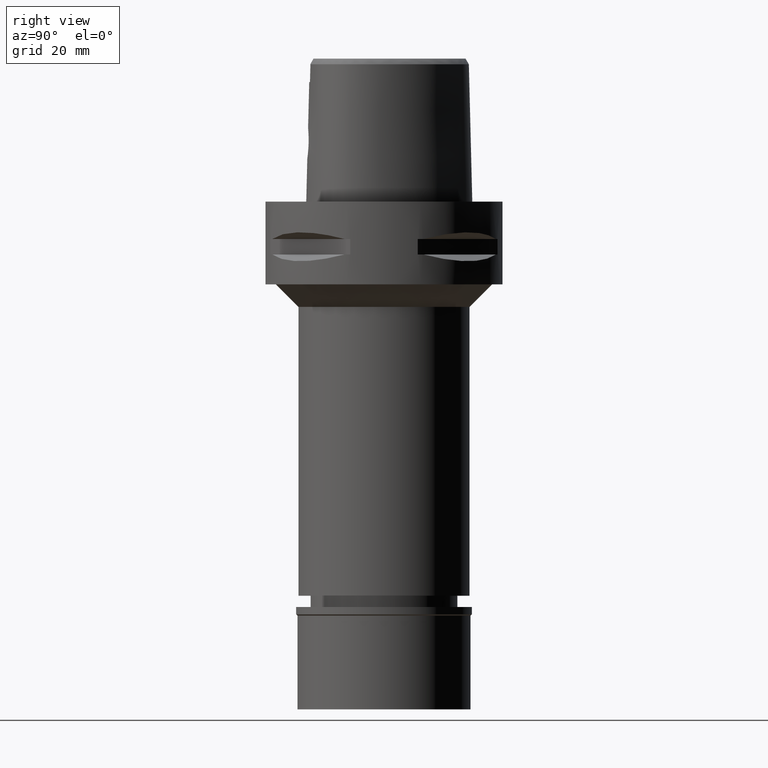
[diagram: clean part render]
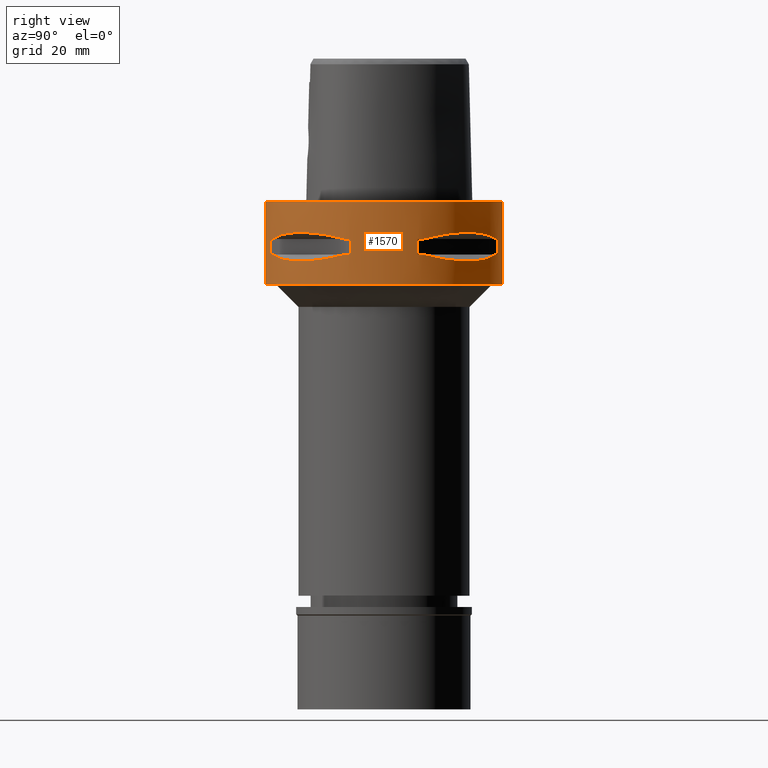
[diagram: same view with one face highlighted and labeled with its STEP entity id]
A machine part, right view. The second image highlights one B-rep face of the part: STEP entity #1570.
In plain terms, the highlighted cylindrical surface (partial cylindrical patch) has radius 31.5 mm, axis along (0, 0, -1).
Its self-contained STEP definition (entity closure, byte-faithful):
#2 = CARTESIAN_POINT ( 'NONE',  ( 0.0000000000000000000, -31.50000000000000000, 0.0000000000000000000 ) ) ;
#21 = CARTESIAN_POINT ( 'NONE',  ( 0.0000000000000000000, 0.0000000000000000000, -9.950000000000001066 ) ) ;
#24 = EDGE_CURVE ( 'NONE', #4113, #4160, #302, .T. ) ;
#32 = CARTESIAN_POINT ( 'NONE',  ( 10.44775724750000023, 29.71690375017999841, -14.05000000000000071 ) ) ;
#38 = CARTESIAN_POINT ( 'NONE',  ( 16.70616724746230730, -26.70521063584596888, -15.37546661818052307 ) ) ;
#58 = CARTESIAN_POINT ( 'NONE',  ( 27.86285265926851551, -14.89252659056515427, -15.10765629751784012 ) ) ;
#65 = VERTEX_POINT ( 'NONE', #779 ) ;
#103 = VECTOR ( 'NONE', #1225, 1000.000000000000000 ) ;
#114 = CARTESIAN_POINT ( 'NONE',  ( 16.48208282229545318, -26.84474411198741350, -15.34094883778379348 ) ) ;
#134 = CARTESIAN_POINT ( 'NONE',  ( 10.44775724750000023, -29.71690375017999841, -14.05000000000000071 ) ) ;
#155 = B_SPLINE_CURVE_WITH_KNOTS ( 'NONE', 3,
 ( #2119, #2429, #2825, #3939, #553, #1668, #2142, #4342, #3963, #532 ),
 .UNSPECIFIED., .F., .F.,
 ( 4, 2, 2, 2, 4 ),
 ( 0.0000000000000000000, 0.2500000000000000000, 0.5000000000000000000, 0.7500000000000000000, 1.000000000000000000 ),
 .UNSPECIFIED. ) ;
#166 = CARTESIAN_POINT ( 'NONE',  ( 0.0000000000000000000, 0.0000000000000000000, -9.950000000000001066 ) ) ;
#173 = EDGE_LOOP ( 'NONE', ( #1981, #1907, #2407, #322, #400, #2802, #3371, #3181 ) ) ;
#181 = CARTESIAN_POINT ( 'NONE',  ( 30.19251670572000279, -8.981198972016999349, -9.950000000000001066 ) ) ;
#196 = CARTESIAN_POINT ( 'NONE',  ( 10.44775724750000023, 29.71690375017999841, -9.950000000002001244 ) ) ;
#205 = DIRECTION ( 'NONE',  ( 0.3316748332540863653, -0.9433937698468619626, 0.0000000000000000000 ) ) ;
#228 = CARTESIAN_POINT ( 'NONE',  ( 8.981198972019999616, -30.19251670572000279, -9.950000000000001066 ) ) ;
#236 = CARTESIAN_POINT ( 'NONE',  ( 18.81462633026355391, 25.37272068403001768, -8.309724968617139496 ) ) ;
#295 = CARTESIAN_POINT ( 'NONE',  ( 0.0000000000000000000, 0.0000000000000000000, -14.05000000000000071 ) ) ;
#302 = CIRCLE ( 'NONE', #1915, 31.50000000000001776 ) ;
#311 = CARTESIAN_POINT ( 'NONE',  ( 0.0000000000000000000, 0.0000000000000000000, 1.243449787579999883E-14 ) ) ;
#322 = ORIENTED_EDGE ( 'NONE', *, *, #2070, .F. ) ;
#341 = CARTESIAN_POINT ( 'NONE',  ( 0.0000000000000000000, 0.0000000000000000000, -22.00000000000000000 ) ) ;
#354 = FACE_BOUND ( 'NONE', #173, .T. ) ;
#381 = LINE ( 'NONE', #2401, #404 ) ;
#396 = ORIENTED_EDGE ( 'NONE', *, *, #4769, .T. ) ;
#397 = CIRCLE ( 'NONE', #1059, 31.50000000000001776 ) ;
#400 = ORIENTED_EDGE ( 'NONE', *, *, #2426, .T. ) ;
#404 = VECTOR ( 'NONE', #3914, 1000.000000000000000 ) ;
#407 = DIRECTION ( 'NONE',  ( 0.9433937698468619626, -0.3316748332540863653, 0.0000000000000000000 ) ) ;
#426 = CARTESIAN_POINT ( 'NONE',  ( 16.80193241490862022, -26.64486562695897121, -15.38992683736031708 ) ) ;
#483 = ORIENTED_EDGE ( 'NONE', *, *, #2037, .T. ) ;
#492 = AXIS2_PLACEMENT_3D ( 'NONE', #4455, #3634, #205 ) ;
#532 = CARTESIAN_POINT ( 'NONE',  ( 29.71690375017999841, -10.44775724750000023, -9.950000000002001244 ) ) ;
#553 = CARTESIAN_POINT ( 'NONE',  ( 20.64154884324731043, -23.90617837150517389, -8.160627831300901747 ) ) ;
#618 = CARTESIAN_POINT ( 'NONE',  ( 26.60451452154907059, 16.86571563436881149, -15.39949295786330197 ) ) ;
#650 = CARTESIAN_POINT ( 'NONE',  ( 17.05047092244371854, 26.48642424310703447, -15.42670883407968674 ) ) ;
#665 = CARTESIAN_POINT ( 'NONE',  ( 29.71690375017999841, 10.44775724750000023, -9.950000000002001244 ) ) ;
#675 = VERTEX_POINT ( 'NONE', #3251 ) ;
#702 = FACE_BOUND ( 'NONE', #4421, .T. ) ;
#716 = AXIS2_PLACEMENT_3D ( 'NONE', #311, #3823, #1170 ) ;
#717 = LINE ( 'NONE', #2251, #3045 ) ;
#769 = DIRECTION ( 'NONE',  ( 0.0000000000000000000, 0.0000000000000000000, -1.000000000000000000 ) ) ;
#779 = CARTESIAN_POINT ( 'NONE',  ( 29.71690375017999841, -10.44775724750000023, -9.950000000002001244 ) ) ;
#838 = LINE ( 'NONE', #4595, #103 ) ;
#866 = CARTESIAN_POINT ( 'NONE',  ( 15.11986997311391612, -27.64634172017876068, -15.11207862404153524 ) ) ;
#884 = EDGE_CURVE ( 'NONE', #1519, #1161, #1674, .T. ) ;
#947 = ORIENTED_EDGE ( 'NONE', *, *, #3943, .T. ) ;
#1002 = DIRECTION ( 'NONE',  ( 0.9433937698468619626, 0.3316748332540863653, 0.0000000000000000000 ) ) ;
#1034 = CARTESIAN_POINT ( 'NONE',  ( 0.0000000000000000000, 0.0000000000000000000, -9.950000000000001066 ) ) ;
#1059 = AXIS2_PLACEMENT_3D ( 'NONE', #295, #1456, #1827 ) ;
#1069 = CIRCLE ( 'NONE', #4169, 31.50000000000001776 ) ;
#1079 = CARTESIAN_POINT ( 'NONE',  ( 29.71690375017999841, 10.44775724750000023, -9.950000000002001244 ) ) ;
#1161 = VERTEX_POINT ( 'NONE', #3866 ) ;
#1170 = DIRECTION ( 'NONE',  ( 0.0000000000000000000, 1.000000000000000000, 0.0000000000000000000 ) ) ;
#1194 = VERTEX_POINT ( 'NONE', #4768 ) ;
#1197 = ORIENTED_EDGE ( 'NONE', *, *, #3704, .F. ) ;
#1200 = CARTESIAN_POINT ( 'NONE',  ( 28.91382665369116722, -12.73197616787390629, -14.65467361753813513 ) ) ;
#1225 = DIRECTION ( 'NONE',  ( 0.0000000000000000000, 0.0000000000000000000, -1.000000000000000000 ) ) ;
#1277 = CARTESIAN_POINT ( 'NONE',  ( 29.71690375017999841, -10.44775724750000023, -14.05000000000000071 ) ) ;
#1301 = CARTESIAN_POINT ( 'NONE',  ( 11.58970337495594194, -29.31542262584231651, -14.35229357167384912 ) ) ;
#1361 = CARTESIAN_POINT ( 'NONE',  ( 20.18579225685413903, 24.23018836746430082, -15.78559396979327367 ) ) ;
#1379 = CARTESIAN_POINT ( 'NONE',  ( 20.64154884324738148, 23.90617837150510283, -8.160613588479783687 ) ) ;
#1400 = CARTESIAN_POINT ( 'NONE',  ( 14.84430321572445344, 27.88210502987327644, -8.906184731987689673 ) ) ;
#1408 = CARTESIAN_POINT ( 'NONE',  ( 18.59229662064599609, 25.43927894892505392, -15.62866126334696482 ) ) ;
#1456 = DIRECTION ( 'NONE',  ( 0.0000000000000000000, 0.0000000000000000000, -1.000000000000000000 ) ) ;
#1462 = DIRECTION ( 'NONE',  ( 0.0000000000000000000, 0.0000000000000000000, -1.000000000000000000 ) ) ;
#1485 = DIRECTION ( 'NONE',  ( 0.2851174276831918153, 0.9584925938322735872, 0.0000000000000000000 ) ) ;
#1501 = DIRECTION ( 'NONE',  ( 0.0000000000000000000, 0.0000000000000000000, 1.000000000000000000 ) ) ;
#1519 = VERTEX_POINT ( 'NONE', #1079 ) ;
#1540 = DIRECTION ( 'NONE',  ( 0.0000000000000000000, 0.0000000000000000000, 1.000000000000000000 ) ) ;
#1541 = CARTESIAN_POINT ( 'NONE',  ( 0.0000000000000000000, 0.0000000000000000000, -14.05000000000000071 ) ) ;
#1569 = CARTESIAN_POINT ( 'NONE',  ( 18.86897208075735222, -25.32725744466094753, -15.69588095933972838 ) ) ;
#1570 = ADVANCED_FACE ( 'NONE', ( #2963, #702, #354 ), #2235, .T. ) ;
#1604 = AXIS2_PLACEMENT_3D ( 'NONE', #3436, #3760, #1865 ) ;
#1642 = CARTESIAN_POINT ( 'NONE',  ( 16.89910283486696940, -26.58330558444649583, -15.40446471307537202 ) ) ;
#1668 = CARTESIAN_POINT ( 'NONE',  ( 23.90617837150511349, -20.64154884324738148, -8.160613588479785463 ) ) ;
#1670 = EDGE_CURVE ( 'NONE', #3299, #2358, #2451, .T. ) ;
#1674 = B_SPLINE_CURVE_WITH_KNOTS ( 'NONE', 3,
 ( #665, #3269, #4797, #2918, #3345, #1379, #236, #1400, #4445, #196 ),
 .UNSPECIFIED., .F., .F.,
 ( 4, 2, 2, 2, 4 ),
 ( 0.0000000000000000000, 0.2499999999999999445, 0.4999999999999998890, 0.7499999999999997780, 1.000000000000000000 ),
 .UNSPECIFIED. ) ;
#1688 = DIRECTION ( 'NONE',  ( 0.0000000000000000000, 0.0000000000000000000, -1.000000000000000000 ) ) ;
#1696 = DIRECTION ( 'NONE',  ( 0.9584925938322735872, 0.2851174276831918153, 0.0000000000000000000 ) ) ;
#1767 = VECTOR ( 'NONE', #769, 1000.000000000000000 ) ;
#1773 = DIRECTION ( 'NONE',  ( 0.0000000000000000000, 0.0000000000000000000, 1.000000000000000000 ) ) ;
#1784 = CARTESIAN_POINT ( 'NONE',  ( 21.46242677077769656, 23.08532645888790213, -15.83938991065623014 ) ) ;
#1827 = DIRECTION ( 'NONE',  ( 0.9584925938322735872, -0.2851174276831918153, 0.0000000000000000000 ) ) ;
#1840 = VERTEX_POINT ( 'NONE', #3308 ) ;
#1842 = EDGE_CURVE ( 'NONE', #4443, #4483, #4857, .T. ) ;
#1856 = CARTESIAN_POINT ( 'NONE',  ( 26.58330558444649583, 16.89910283486696940, -15.40446471307537202 ) ) ;
#1862 = ORIENTED_EDGE ( 'NONE', *, *, #4141, .T. ) ;
#1865 = DIRECTION ( 'NONE',  ( 0.0000000000000000000, -1.000000000000000000, 0.0000000000000000000 ) ) ;
#1907 = ORIENTED_EDGE ( 'NONE', *, *, #2906, .F. ) ;
#1910 = ORIENTED_EDGE ( 'NONE', *, *, #2947, .T. ) ;
#1915 = AXIS2_PLACEMENT_3D ( 'NONE', #1541, #1462, #1485 ) ;
#1959 = VERTEX_POINT ( 'NONE', #3211 ) ;
#1981 = ORIENTED_EDGE ( 'NONE', *, *, #4278, .T. ) ;
#1985 = CARTESIAN_POINT ( 'NONE',  ( 0.0000000000000000000, -31.50000000000000000, -22.00000000000000000 ) ) ;
#1986 = CARTESIAN_POINT ( 'NONE',  ( 20.65093790435025767, -23.89673728057072211, -15.83935804902266931 ) ) ;
#2012 = AXIS2_PLACEMENT_3D ( 'NONE', #1034, #1773, #3391 ) ;
#2022 = VECTOR ( 'NONE', #1688, 1000.000000000000000 ) ;
#2037 = EDGE_CURVE ( 'NONE', #4443, #2358, #397, .T. ) ;
#2070 = EDGE_CURVE ( 'NONE', #3803, #4160, #3515, .T. ) ;
#2091 = AXIS2_PLACEMENT_3D ( 'NONE', #21, #4243, #407 ) ;
#2119 = CARTESIAN_POINT ( 'NONE',  ( 10.44775724750000023, -29.71690375017999841, -9.950000000002001244 ) ) ;
#2142 = CARTESIAN_POINT ( 'NONE',  ( 25.37272068403008518, -18.81462633026348286, -8.309724968617141272 ) ) ;
#2226 = CARTESIAN_POINT ( 'NONE',  ( 8.981198972016999349, 30.19251670572000279, -9.950000000000001066 ) ) ;
#2235 = CYLINDRICAL_SURFACE ( 'NONE', #1604, 31.50000000000000000 ) ;
#2251 = CARTESIAN_POINT ( 'NONE',  ( 30.19251670572000279, 8.981198972016999349, -9.950000000000001066 ) ) ;
#2253 = CIRCLE ( 'NONE', #4578, 31.50000000000000000 ) ;
#2338 = VERTEX_POINT ( 'NONE', #228 ) ;
#2358 = VERTEX_POINT ( 'NONE', #4206 ) ;
#2365 = CARTESIAN_POINT ( 'NONE',  ( 26.01217882835248929, -17.76952662671760308, -15.52665221626392800 ) ) ;
#2391 = ORIENTED_EDGE ( 'NONE', *, *, #3723, .F. ) ;
#2393 = CARTESIAN_POINT ( 'NONE',  ( 16.86571563436881149, -26.60451452154907059, -15.39949295786330197 ) ) ;
#2401 = CARTESIAN_POINT ( 'NONE',  ( 8.981198972016999349, 30.19251670572000279, -14.05000000000000071 ) ) ;
#2407 = ORIENTED_EDGE ( 'NONE', *, *, #24, .T. ) ;
#2421 = VERTEX_POINT ( 'NONE', #2226 ) ;
#2426 = EDGE_CURVE ( 'NONE', #3803, #1840, #4803, .T. ) ;
#2428 = CARTESIAN_POINT ( 'NONE',  ( 10.44775724750000023, 29.71690375017999841, -14.05000000000000071 ) ) ;
#2429 = CARTESIAN_POINT ( 'NONE',  ( 12.70092055735361924, -28.92474506843114668, -9.353547358217939589 ) ) ;
#2445 = DIRECTION ( 'NONE',  ( 0.0000000000000000000, 0.0000000000000000000, 1.000000000000000000 ) ) ;
#2451 = B_SPLINE_CURVE_WITH_KNOTS ( 'NONE', 3,
 ( #134, #1301, #2793, #866, #2746, #114, #38, #426, #2393, #1642, #1569, #1986, #3106, #3542, #3183, #2365, #3860, #4213, #3564, #4262, #3906, #58, #1200, #1277 ),
 .UNSPECIFIED., .F., .F.,
 ( 4, 1, 1, 1, 1, 1, 2, 2, 2, 1, 1, 1, 1, 1, 2, 2, 4 ),
 ( 0.0000000000000000000, 0.1250000000000017486, 0.1875000000000026090, 0.2187500000000033029, 0.2343750000000038858, 0.2421875000000042744, 0.2460937500000044686, 0.2500000000000046629, 0.5000000000000101030, 0.6250000000000126565, 0.6875000000000138778, 0.7187500000000146549, 0.7343750000000150990, 0.7421875000000150990, 0.7460937500000149880, 0.7500000000000149880, 1.000000000000000000 ),
 .UNSPECIFIED. ) ;
#2498 = CARTESIAN_POINT ( 'NONE',  ( 16.96123479565122238, 26.54368690921823060, -15.41365572341632095 ) ) ;
#2519 = CARTESIAN_POINT ( 'NONE',  ( 29.31542262584231651, 11.58970337495594194, -14.35229357167384912 ) ) ;
#2540 = CARTESIAN_POINT ( 'NONE',  ( 26.64486562695897121, 16.80193241490862022, -15.38992683736031708 ) ) ;
#2568 = VECTOR ( 'NONE', #2445, 1000.000000000000000 ) ;
#2609 = CARTESIAN_POINT ( 'NONE',  ( 26.84474411198741350, 16.48208282229545318, -15.34094883778379348 ) ) ;
#2735 = AXIS2_PLACEMENT_3D ( 'NONE', #4563, #1540, #3858 ) ;
#2746 = CARTESIAN_POINT ( 'NONE',  ( 16.03138450079309862, -27.11872488589068553, -15.26880420108148506 ) ) ;
#2754 = ORIENTED_EDGE ( 'NONE', *, *, #4052, .T. ) ;
#2790 = ORIENTED_EDGE ( 'NONE', *, *, #1670, .F. ) ;
#2793 = CARTESIAN_POINT ( 'NONE',  ( 13.25636937905766999, -28.62019653468112068, -14.74888225542022369 ) ) ;
#2800 = DIRECTION ( 'NONE',  ( 0.0000000000000000000, 0.0000000000000000000, 1.000000000000000000 ) ) ;
#2802 = ORIENTED_EDGE ( 'NONE', *, *, #4187, .F. ) ;
#2825 = CARTESIAN_POINT ( 'NONE',  ( 14.84422749205300285, -27.88214534467226713, -8.906206096483272106 ) ) ;
#2882 = CARTESIAN_POINT ( 'NONE',  ( 25.32725744466094753, 18.86897208075735222, -15.69588095933972838 ) ) ;
#2886 = EDGE_LOOP ( 'NONE', ( #4828, #1862, #2754, #2391 ) ) ;
#2906 = EDGE_CURVE ( 'NONE', #4113, #2421, #381, .T. ) ;
#2918 = CARTESIAN_POINT ( 'NONE',  ( 25.37277178164058000, 18.81455742168906653, -8.309746333112720151 ) ) ;
#2927 = CARTESIAN_POINT ( 'NONE',  ( 17.76952662671760308, 26.01217882835248929, -15.52665221626392800 ) ) ;
#2947 = EDGE_CURVE ( 'NONE', #65, #4483, #4489, .T. ) ;
#2963 = FACE_OUTER_BOUND ( 'NONE', #2886, .T. ) ;
#2980 = CARTESIAN_POINT ( 'NONE',  ( 28.62019653468112068, 13.25636937905766999, -14.74888225542022369 ) ) ;
#2996 = LINE ( 'NONE', #2, #1767 ) ;
#3040 = VERTEX_POINT ( 'NONE', #3087 ) ;
#3045 = VECTOR ( 'NONE', #4680, 1000.000000000000000 ) ;
#3087 = CARTESIAN_POINT ( 'NONE',  ( 0.0000000000000000000, 31.50000000000000000, 1.243449787579999883E-14 ) ) ;
#3106 = CARTESIAN_POINT ( 'NONE',  ( 23.08532645888790213, -21.46242677077769656, -15.83938991065623014 ) ) ;
#3117 = CIRCLE ( 'NONE', #492, 31.50000000000000711 ) ;
#3119 = AXIS2_PLACEMENT_3D ( 'NONE', #4411, #4558, #1002 ) ;
#3144 = EDGE_CURVE ( 'NONE', #675, #65, #155, .T. ) ;
#3181 = ORIENTED_EDGE ( 'NONE', *, *, #884, .T. ) ;
#3183 = CARTESIAN_POINT ( 'NONE',  ( 25.43927894892505392, -18.59229662064599609, -15.62866126334696482 ) ) ;
#3211 = CARTESIAN_POINT ( 'NONE',  ( 30.19251670572000279, 8.981198972019999616, -9.950000000000001066 ) ) ;
#3230 = EDGE_CURVE ( 'NONE', #1959, #1519, #1069, .T. ) ;
#3251 = CARTESIAN_POINT ( 'NONE',  ( 10.44775724750000023, -29.71690375017999841, -9.950000000002001244 ) ) ;
#3269 = CARTESIAN_POINT ( 'NONE',  ( 28.92474506843117865, 12.70092055735358016, -9.353547358217943142 ) ) ;
#3298 = CIRCLE ( 'NONE', #716, 31.50000000000000000 ) ;
#3299 = VERTEX_POINT ( 'NONE', #3569 ) ;
#3308 = CARTESIAN_POINT ( 'NONE',  ( 30.19251670572000279, 8.981198972016999349, -14.05000000000000071 ) ) ;
#3345 = CARTESIAN_POINT ( 'NONE',  ( 23.90617837150504599, 20.64154884324745609, -8.160627831300901747 ) ) ;
#3371 = ORIENTED_EDGE ( 'NONE', *, *, #3230, .T. ) ;
#3391 = DIRECTION ( 'NONE',  ( 0.3316748332540863653, 0.9433937698468619626, 0.0000000000000000000 ) ) ;
#3425 = CARTESIAN_POINT ( 'NONE',  ( 8.981198972019999616, 30.19251670572000279, -14.05000000000000071 ) ) ;
#3436 = CARTESIAN_POINT ( 'NONE',  ( 0.0000000000000000000, 0.0000000000000000000, 6.200000000000000178 ) ) ;
#3515 = B_SPLINE_CURVE_WITH_KNOTS ( 'NONE', 3,
 ( #4433, #2519, #2980, #4510, #4032, #2609, #3750, #2540, #618, #1856, #2882, #4783, #1784, #1361, #1408, #2927, #4406, #4076, #650, #3938, #2498, #4716, #4788, #2428 ),
 .UNSPECIFIED., .F., .F.,
 ( 4, 1, 1, 1, 1, 1, 2, 2, 2, 1, 1, 1, 1, 1, 2, 2, 4 ),
 ( 0.0000000000000000000, 0.1250000000000017486, 0.1875000000000026090, 0.2187500000000033029, 0.2343750000000038858, 0.2421875000000042744, 0.2460937500000044686, 0.2500000000000046629, 0.5000000000000101030, 0.6250000000000126565, 0.6875000000000138778, 0.7187500000000146549, 0.7343750000000150990, 0.7421875000000150990, 0.7460937500000149880, 0.7500000000000149880, 1.000000000000000000 ),
 .UNSPECIFIED. ) ;
#3542 = CARTESIAN_POINT ( 'NONE',  ( 24.23018836746430082, -20.18579225685413903, -15.78559396979327367 ) ) ;
#3564 = CARTESIAN_POINT ( 'NONE',  ( 26.48642424310703447, -17.05047092244371854, -15.42670883407968674 ) ) ;
#3569 = CARTESIAN_POINT ( 'NONE',  ( 10.44775724750000023, -29.71690375017999841, -14.05000000000000071 ) ) ;
#3588 = VERTEX_POINT ( 'NONE', #1985 ) ;
#3609 = CARTESIAN_POINT ( 'NONE',  ( 0.0000000000000000000, 31.50000000000000000, -22.00000000000000000 ) ) ;
#3634 = DIRECTION ( 'NONE',  ( 0.0000000000000000000, 0.0000000000000000000, -1.000000000000000000 ) ) ;
#3704 = EDGE_CURVE ( 'NONE', #2338, #4354, #838, .T. ) ;
#3723 = EDGE_CURVE ( 'NONE', #3040, #3893, #4764, .T. ) ;
#3727 = CARTESIAN_POINT ( 'NONE',  ( 30.19251670572000279, -8.981198972016999349, -14.05000000000000071 ) ) ;
#3750 = CARTESIAN_POINT ( 'NONE',  ( 26.70521063584596888, 16.70616724746230730, -15.37546661818052307 ) ) ;
#3760 = DIRECTION ( 'NONE',  ( 0.0000000000000000000, 0.0000000000000000000, -1.000000000000000000 ) ) ;
#3776 = DIRECTION ( 'NONE',  ( 0.0000000000000000000, -1.000000000000000000, 0.0000000000000000000 ) ) ;
#3780 = CARTESIAN_POINT ( 'NONE',  ( 29.71690375017999841, 10.44775724750000023, -14.05000000000000071 ) ) ;
#3803 = VERTEX_POINT ( 'NONE', #3780 ) ;
#3823 = DIRECTION ( 'NONE',  ( 0.0000000000000000000, 0.0000000000000000000, -1.000000000000000000 ) ) ;
#3858 = DIRECTION ( 'NONE',  ( 0.2851174276831918153, -0.9584925938322735872, 0.0000000000000000000 ) ) ;
#3860 = CARTESIAN_POINT ( 'NONE',  ( 26.29071741524046146, -17.35163608579731687, -15.46976201925743055 ) ) ;
#3866 = CARTESIAN_POINT ( 'NONE',  ( 10.44775724750000023, 29.71690375017999841, -9.950000000002001244 ) ) ;
#3893 = VERTEX_POINT ( 'NONE', #3609 ) ;
#3905 = CARTESIAN_POINT ( 'NONE',  ( 0.0000000000000000000, 31.50000000000000000, 0.0000000000000000000 ) ) ;
#3906 = CARTESIAN_POINT ( 'NONE',  ( 26.54368690921823060, -16.96123479565122238, -15.41365572341632095 ) ) ;
#3914 = DIRECTION ( 'NONE',  ( 0.0000000000000000000, 0.0000000000000000000, 1.000000000000000000 ) ) ;
#3938 = CARTESIAN_POINT ( 'NONE',  ( 16.98999780422225214, 26.52527364208797778, -15.41788098766626369 ) ) ;
#3939 = CARTESIAN_POINT ( 'NONE',  ( 18.81455742168905232, -25.37277178164058711, -8.309746333112718375 ) ) ;
#3943 = EDGE_CURVE ( 'NONE', #3299, #4354, #3117, .T. ) ;
#3960 = EDGE_CURVE ( 'NONE', #3040, #1194, #3298, .T. ) ;
#3963 = CARTESIAN_POINT ( 'NONE',  ( 28.92472615206976982, -12.70097436179008099, -9.353533115220889371 ) ) ;
#4032 = CARTESIAN_POINT ( 'NONE',  ( 27.11872488589068553, 16.03138450079309862, -15.26880420108148506 ) ) ;
#4052 = EDGE_CURVE ( 'NONE', #3588, #3893, #2253, .T. ) ;
#4076 = CARTESIAN_POINT ( 'NONE',  ( 17.14106442934815533, 26.42800887047804181, -15.43984550238795350 ) ) ;
#4113 = VERTEX_POINT ( 'NONE', #3425 ) ;
#4141 = EDGE_CURVE ( 'NONE', #1194, #3588, #2996, .T. ) ;
#4160 = VERTEX_POINT ( 'NONE', #32 ) ;
#4169 = AXIS2_PLACEMENT_3D ( 'NONE', #166, #2800, #1696 ) ;
#4187 = EDGE_CURVE ( 'NONE', #1959, #1840, #717, .T. ) ;
#4206 = CARTESIAN_POINT ( 'NONE',  ( 29.71690375017999841, -10.44775724750000023, -14.05000000000000071 ) ) ;
#4213 = CARTESIAN_POINT ( 'NONE',  ( 26.42800887047804181, -17.14106442934815533, -15.43984550238795350 ) ) ;
#4243 = DIRECTION ( 'NONE',  ( 0.0000000000000000000, 0.0000000000000000000, 1.000000000000000000 ) ) ;
#4262 = CARTESIAN_POINT ( 'NONE',  ( 26.52527364208797778, -16.98999780422225214, -15.41788098766626369 ) ) ;
#4278 = EDGE_CURVE ( 'NONE', #1161, #2421, #4482, .T. ) ;
#4280 = ORIENTED_EDGE ( 'NONE', *, *, #1842, .F. ) ;
#4317 = ORIENTED_EDGE ( 'NONE', *, *, #3144, .T. ) ;
#4342 = CARTESIAN_POINT ( 'NONE',  ( 27.88210502987335460, -14.84430321572431666, -8.906184731987691450 ) ) ;
#4354 = VERTEX_POINT ( 'NONE', #4918 ) ;
#4406 = CARTESIAN_POINT ( 'NONE',  ( 17.35163608579731687, 26.29071741524046146, -15.46976201925743055 ) ) ;
#4411 = CARTESIAN_POINT ( 'NONE',  ( 0.0000000000000000000, 0.0000000000000000000, -14.05000000000000071 ) ) ;
#4421 = EDGE_LOOP ( 'NONE', ( #1910, #4280, #483, #2790, #947, #1197, #396, #4317 ) ) ;
#4433 = CARTESIAN_POINT ( 'NONE',  ( 29.71690375017999841, 10.44775724750000023, -14.05000000000000071 ) ) ;
#4443 = VERTEX_POINT ( 'NONE', #4775 ) ;
#4445 = CARTESIAN_POINT ( 'NONE',  ( 12.70097436179019113, 28.92472615206971653, -9.353533115220882266 ) ) ;
#4455 = CARTESIAN_POINT ( 'NONE',  ( 0.0000000000000000000, 0.0000000000000000000, -14.05000000000000071 ) ) ;
#4482 = CIRCLE ( 'NONE', #2012, 31.50000000000000711 ) ;
#4483 = VERTEX_POINT ( 'NONE', #181 ) ;
#4489 = CIRCLE ( 'NONE', #2091, 31.50000000000000711 ) ;
#4510 = CARTESIAN_POINT ( 'NONE',  ( 27.64634172017876068, 15.11986997311391612, -15.11207862404153524 ) ) ;
#4558 = DIRECTION ( 'NONE',  ( 0.0000000000000000000, 0.0000000000000000000, -1.000000000000000000 ) ) ;
#4563 = CARTESIAN_POINT ( 'NONE',  ( 0.0000000000000000000, 0.0000000000000000000, -9.950000000000001066 ) ) ;
#4578 = AXIS2_PLACEMENT_3D ( 'NONE', #341, #1501, #3776 ) ;
#4595 = CARTESIAN_POINT ( 'NONE',  ( 8.981198972016999349, -30.19251670572000279, -9.950000000000001066 ) ) ;
#4680 = DIRECTION ( 'NONE',  ( 0.0000000000000000000, 0.0000000000000000000, -1.000000000000000000 ) ) ;
#4716 = CARTESIAN_POINT ( 'NONE',  ( 14.89252659056515427, 27.86285265926851551, -15.10765629751784012 ) ) ;
#4764 = LINE ( 'NONE', #3905, #2022 ) ;
#4768 = CARTESIAN_POINT ( 'NONE',  ( 0.0000000000000000000, -31.50000000000000000, 1.243449787579999883E-14 ) ) ;
#4769 = EDGE_CURVE ( 'NONE', #2338, #675, #4888, .T. ) ;
#4775 = CARTESIAN_POINT ( 'NONE',  ( 30.19251670572000279, -8.981198972019999616, -14.05000000000000071 ) ) ;
#4783 = CARTESIAN_POINT ( 'NONE',  ( 23.89673728057072211, 20.65093790435025767, -15.83935804902266931 ) ) ;
#4788 = CARTESIAN_POINT ( 'NONE',  ( 12.73197616787390629, 28.91382665369116722, -14.65467361753813513 ) ) ;
#4797 = CARTESIAN_POINT ( 'NONE',  ( 27.88214534467228489, 14.84422749205298331, -8.906206096483270329 ) ) ;
#4803 = CIRCLE ( 'NONE', #3119, 31.50000000000000711 ) ;
#4828 = ORIENTED_EDGE ( 'NONE', *, *, #3960, .T. ) ;
#4857 = LINE ( 'NONE', #3727, #2568 ) ;
#4888 = CIRCLE ( 'NONE', #2735, 31.50000000000001776 ) ;
#4918 = CARTESIAN_POINT ( 'NONE',  ( 8.981198972016999349, -30.19251670572000279, -14.05000000000000071 ) ) ;